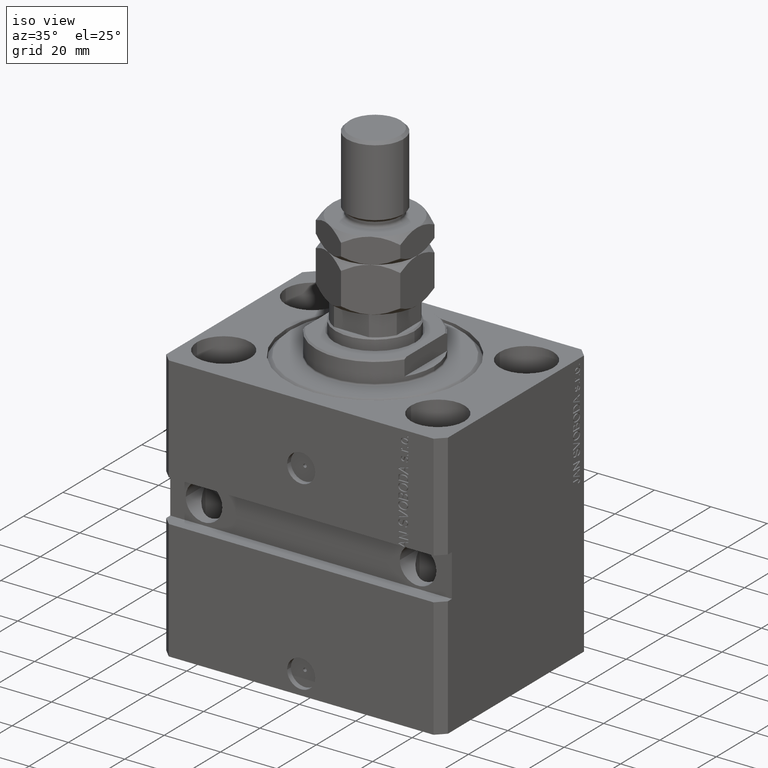
[diagram: clean part render]
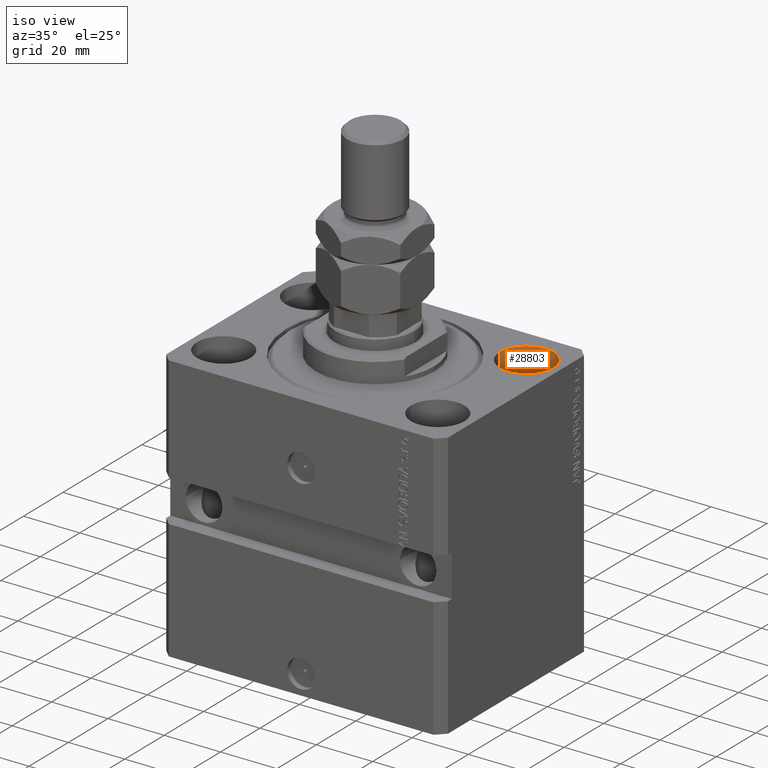
[diagram: same view with one face highlighted and labeled with its STEP entity id]
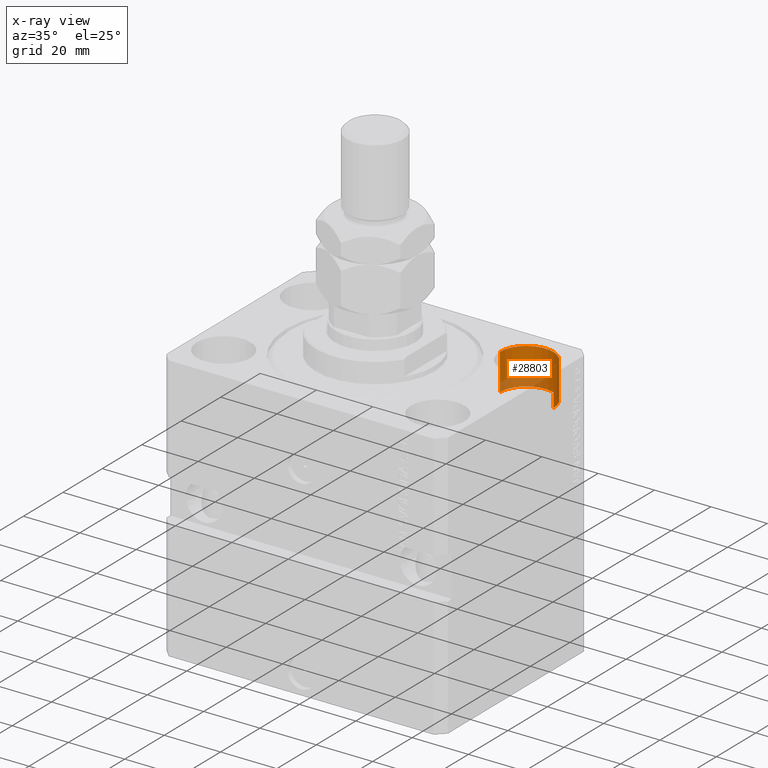
[diagram: x-ray of the same camera — body ghosted, the highlighted face saturated]
A machine part, iso view. The second image highlights one B-rep face of the part: STEP entity #28803.
The next image is the same camera in x-ray: the body ghosted, the highlighted face saturated — about 19% of this face is hidden behind the body in this view.
In plain terms, the highlighted cylindrical surface (edge-blend (fillet) strip) has radius 9.5 mm, axis along (0, 0, 1).
Its self-contained STEP definition (entity closure, byte-faithful):
#209 = VERTEX_POINT ( 'NONE', #28730 ) ;
#3005 = DIRECTION ( 'NONE',  ( -0.000000000000000000, -0.000000000000000000, 1.000000000000000000 ) ) ;
#3311 = CARTESIAN_POINT ( 'NONE',  ( 38.00000000000000711, 22.50000000000001421, 0.000000000000000000 ) ) ;
#4040 = DIRECTION ( 'NONE',  ( 1.000000000000000000, 0.000000000000000000, 0.000000000000000000 ) ) ;
#4601 = ORIENTED_EDGE ( 'NONE', *, *, #25165, .F. ) ;
#5191 = EDGE_CURVE ( 'NONE', #32316, #26618, #25266, .T. ) ;
#8233 = CIRCLE ( 'NONE', #9857, 9.500000000000001776 ) ;
#9857 = AXIS2_PLACEMENT_3D ( 'NONE', #3311, #41661, #4040 ) ;
#13024 = EDGE_CURVE ( 'NONE', #26618, #40866, #8233, .T. ) ;
#13950 = ORIENTED_EDGE ( 'NONE', *, *, #38899, .F. ) ;
#15940 = AXIS2_PLACEMENT_3D ( 'NONE', #37629, #18700, #34379 ) ;
#18288 = DIRECTION ( 'NONE',  ( -0.000000000000000000, -0.000000000000000000, 1.000000000000000000 ) ) ;
#18700 = DIRECTION ( 'NONE',  ( 0.000000000000000000, 0.000000000000000000, 1.000000000000000000 ) ) ;
#18850 = ORIENTED_EDGE ( 'NONE', *, *, #5191, .T. ) ;
#19109 = CARTESIAN_POINT ( 'NONE',  ( 38.00000000000000711, 22.50000000000001421, -13.00000000000000000 ) ) ;
#20823 = CIRCLE ( 'NONE', #15940, 9.500000000000001776 ) ;
#22851 = CYLINDRICAL_SURFACE ( 'NONE', #23178, 9.500000000000001776 ) ;
#23178 = AXIS2_PLACEMENT_3D ( 'NONE', #19109, #3005, #29409 ) ;
#23341 = FACE_OUTER_BOUND ( 'NONE', #35023, .T. ) ;
#25165 = EDGE_CURVE ( 'NONE', #32316, #209, #20823, .T. ) ;
#25266 = LINE ( 'NONE', #48179, #34208 ) ;
#26618 = VERTEX_POINT ( 'NONE', #48240 ) ;
#28730 = CARTESIAN_POINT ( 'NONE',  ( 28.50000000000000355, 22.50000000000001421, -13.00000000000000000 ) ) ;
#28749 = LINE ( 'NONE', #39973, #41749 ) ;
#28803 = ADVANCED_FACE ( 'NONE', ( #23341 ), #22851, .F. ) ;
#29409 = DIRECTION ( 'NONE',  ( 1.000000000000000000, 0.000000000000000000, 0.000000000000000000 ) ) ;
#29562 = CARTESIAN_POINT ( 'NONE',  ( 47.50000000000000711, 22.50000000000001421, -13.00000000000000000 ) ) ;
#32316 = VERTEX_POINT ( 'NONE', #29562 ) ;
#34208 = VECTOR ( 'NONE', #18288, 1000.000000000000000 ) ;
#34379 = DIRECTION ( 'NONE',  ( 1.000000000000000000, 0.000000000000000000, 0.000000000000000000 ) ) ;
#35023 = EDGE_LOOP ( 'NONE', ( #13950, #4601, #18850, #37145 ) ) ;
#35266 = CARTESIAN_POINT ( 'NONE',  ( 28.50000000000000355, 22.50000000000001421, 0.000000000000000000 ) ) ;
#37145 = ORIENTED_EDGE ( 'NONE', *, *, #13024, .T. ) ;
#37629 = CARTESIAN_POINT ( 'NONE',  ( 38.00000000000000711, 22.50000000000001421, -13.00000000000000000 ) ) ;
#38899 = EDGE_CURVE ( 'NONE', #209, #40866, #28749, .T. ) ;
#39973 = CARTESIAN_POINT ( 'NONE',  ( 28.50000000000000355, 22.50000000000001421, -13.00000000000000000 ) ) ;
#40866 = VERTEX_POINT ( 'NONE', #35266 ) ;
#41661 = DIRECTION ( 'NONE',  ( 0.000000000000000000, 0.000000000000000000, 1.000000000000000000 ) ) ;
#41749 = VECTOR ( 'NONE', #44186, 1000.000000000000000 ) ;
#44186 = DIRECTION ( 'NONE',  ( -0.000000000000000000, -0.000000000000000000, 1.000000000000000000 ) ) ;
#48179 = CARTESIAN_POINT ( 'NONE',  ( 47.50000000000000711, 22.50000000000001421, -13.00000000000000000 ) ) ;
#48240 = CARTESIAN_POINT ( 'NONE',  ( 47.50000000000000711, 22.50000000000001421, 0.000000000000000000 ) ) ;